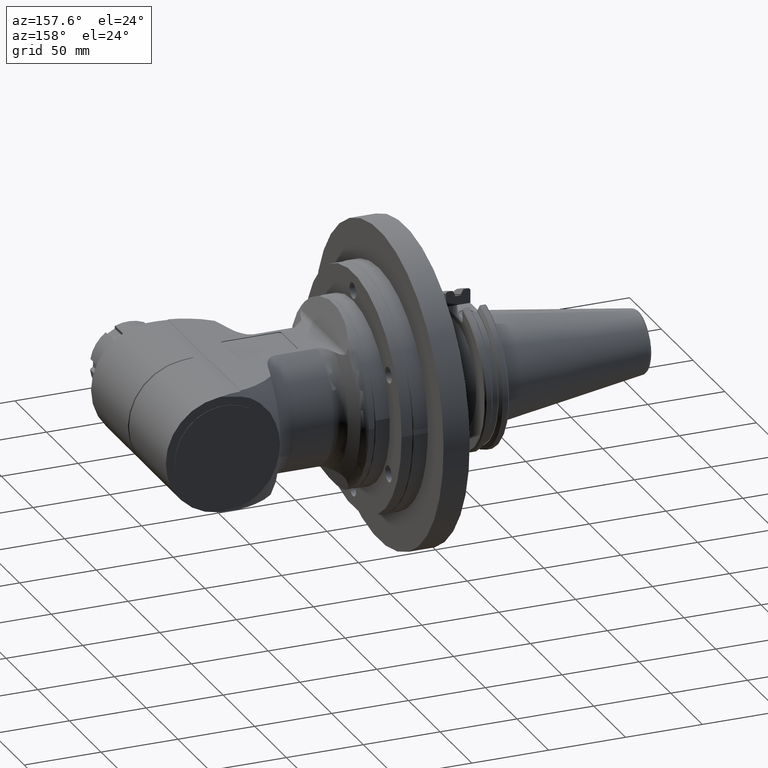
[diagram: clean part render]
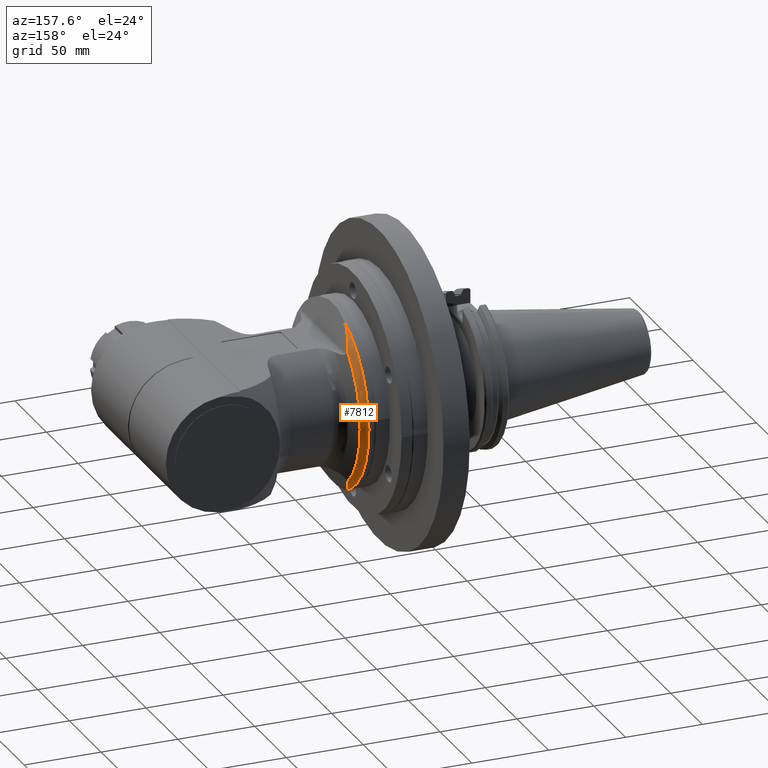
[diagram: same view with one face highlighted and labeled with its STEP entity id]
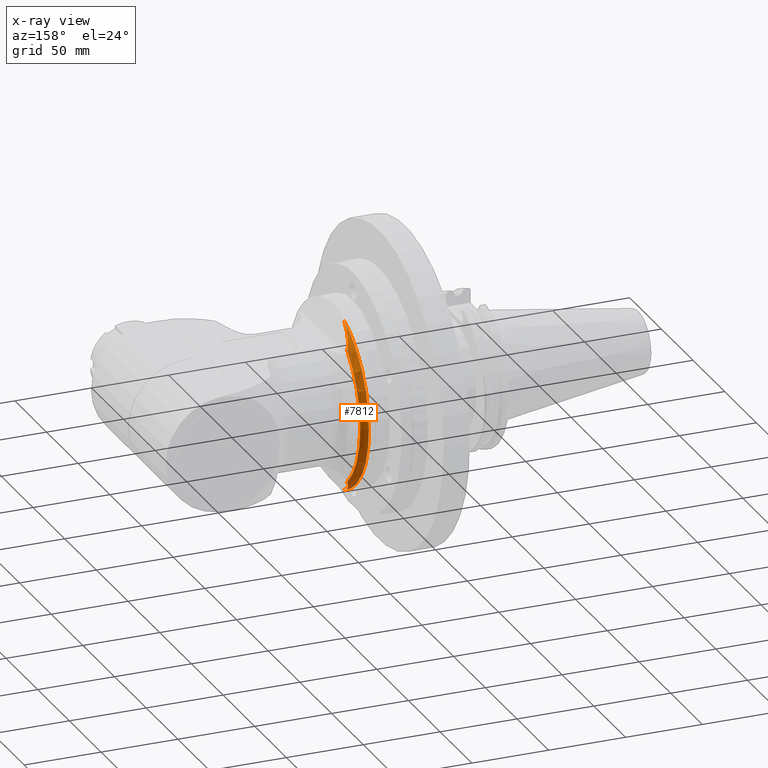
[diagram: x-ray of the same camera — body ghosted, the highlighted face saturated]
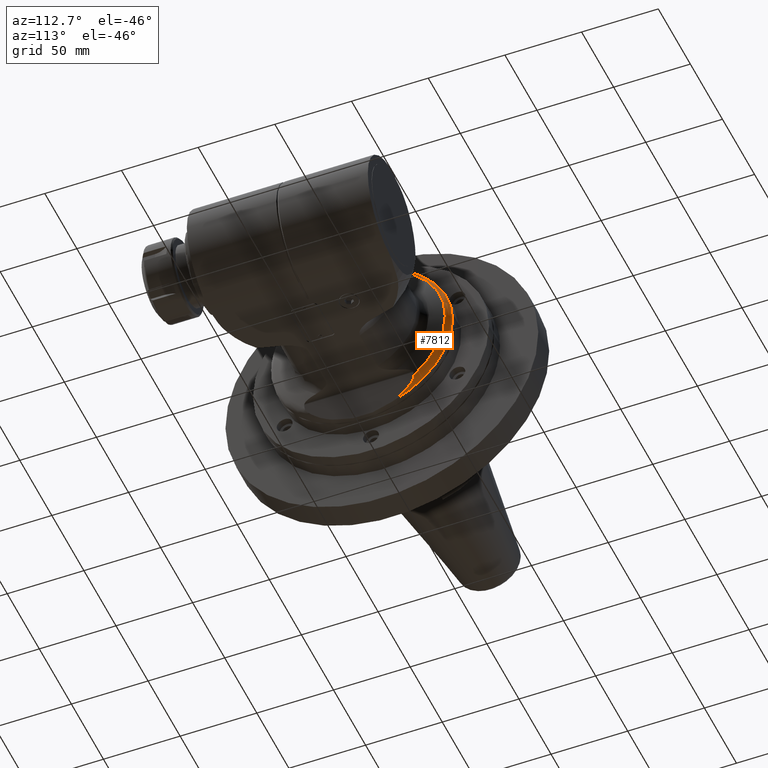
[diagram: same view with one face highlighted and labeled with its STEP entity id]
A machine part, auxiliary view. The second image highlights one B-rep face of the part: STEP entity #7812.
The next image is the same camera in x-ray: the body ghosted, the highlighted face saturated — about 0% of this face is hidden behind the body in this view.
A second angle (auxiliary view) of the same face is appended — the face is thin or edge-on in the first view.
In plain terms, the highlighted toroidal blend (fillet) surface has major radius 54 mm and minor (blend) radius 5 mm.
Its self-contained STEP definition (entity closure, byte-faithful):
#99=TOROIDAL_SURFACE('',#8564,54.,5.);
#118=B_SPLINE_CURVE_WITH_KNOTS('',3,(#11821,#11822,#11823,#11824,#11825,
#11826,#11827,#11828,#11829,#11830,#11831,#11832,#11833,#11834,#11835,#11836,
#11837,#11838),.UNSPECIFIED.,.F.,.F.,(4,2,2,2,2,2,2,2,4),(10.9879278441126,
10.9957160715657,11.1343796732733,11.4346740925179,11.8300800393266,12.2254859861352,
12.5830305777816,12.940575169428,13.0531536640856),.UNSPECIFIED.);
#138=B_SPLINE_CURVE_WITH_KNOTS('',3,(#12880,#12881,#12882,#12883,#12884,
#12885,#12886,#12887,#12888,#12889,#12890,#12891,#12892,#12893,#12894,#12895,
#12896,#12897),.UNSPECIFIED.,.F.,.F.,(4,2,2,2,2,2,2,2,4),(1.83524515230333,
1.94782364696094,2.30536823860732,2.66291283025371,3.05831877706234,3.45372472387097,
3.75401914311565,3.89268274482322,3.9004709722763),.UNSPECIFIED.);
#670=FACE_OUTER_BOUND('',#1101,.T.);
#1101=EDGE_LOOP('',(#6296,#6297,#6298,#6299,#6300));
#1431=CIRCLE('',#8262,56.1130913087);
#1550=CIRCLE('',#8561,59.);
#1551=CIRCLE('',#8562,59.);
#3204=VERTEX_POINT('',#11818);
#3205=VERTEX_POINT('',#11820);
#3207=VERTEX_POINT('',#11843);
#3428=VERTEX_POINT('',#12879);
#3430=VERTEX_POINT('',#12921);
#4135=EDGE_CURVE('',#3205,#3204,#118,.T.);
#4138=EDGE_CURVE('',#3207,#3205,#1431,.T.);
#4494=EDGE_CURVE('',#3428,#3207,#138,.T.);
#4498=EDGE_CURVE('',#3204,#3430,#1550,.T.);
#4499=EDGE_CURVE('',#3430,#3428,#1551,.T.);
#6296=ORIENTED_EDGE('',*,*,#4498,.T.);
#6297=ORIENTED_EDGE('',*,*,#4499,.T.);
#6298=ORIENTED_EDGE('',*,*,#4494,.T.);
#6299=ORIENTED_EDGE('',*,*,#4138,.T.);
#6300=ORIENTED_EDGE('',*,*,#4135,.T.);
#7812=ADVANCED_FACE('',(#670),#99,.T.);
#8262=AXIS2_PLACEMENT_3D('',#11844,#9398,#9399);
#8561=AXIS2_PLACEMENT_3D('',#12922,#10123,#10124);
#8562=AXIS2_PLACEMENT_3D('',#12923,#10125,#10126);
#8564=AXIS2_PLACEMENT_3D('',#12927,#10130,#10131);
#9398=DIRECTION('center_axis',(-1.,0.,0.));
#9399=DIRECTION('ref_axis',(0.,1.,0.));
#10123=DIRECTION('center_axis',(1.,0.,0.));
#10124=DIRECTION('ref_axis',(0.,0.324676078856111,-0.945825271294133));
#10125=DIRECTION('center_axis',(1.,0.,0.));
#10126=DIRECTION('ref_axis',(0.,0.324676078856111,-0.945825271294133));
#10130=DIRECTION('center_axis',(1.,0.,0.));
#10131=DIRECTION('ref_axis',(0.,1.,-1.22464679914735E-16));
#11818=CARTESIAN_POINT('',(-94.18535130404,19.15588865251,-55.80369100635));
#11820=CARTESIAN_POINT('',(-89.65381236885,35.62530817393,-43.35339010656));
#11821=CARTESIAN_POINT('Ctrl Pts',(-89.6538123688561,35.6253081739284,-43.3533901065578));
#11822=CARTESIAN_POINT('Ctrl Pts',(-89.6630613036171,35.6256255432891,-43.3788013459676));
#11823=CARTESIAN_POINT('Ctrl Pts',(-89.6721579632719,35.6253904288883,-43.4037942129615));
#11824=CARTESIAN_POINT('Ctrl Pts',(-89.8390646739695,35.612501129992,-43.8623666317586));
#11825=CARTESIAN_POINT('Ctrl Pts',(-90.0193808462594,35.4401876032091,-44.3577812434876));
#11826=CARTESIAN_POINT('Ctrl Pts',(-90.4766255187694,34.845503311506,-45.6140506563745));
#11827=CARTESIAN_POINT('Ctrl Pts',(-90.809513546956,34.1415743869398,-46.5286529970238));
#11828=CARTESIAN_POINT('Ctrl Pts',(-91.4125297036187,32.6351745420917,-48.1854262710209));
#11829=CARTESIAN_POINT('Ctrl Pts',(-91.7519106450878,31.5875671436029,-49.1178677443004));
#11830=CARTESIAN_POINT('Ctrl Pts',(-92.3729833676757,29.3483701580548,-50.8242510254495));
#11831=CARTESIAN_POINT('Ctrl Pts',(-92.6546044810595,28.1566130198203,-51.5979986753131));
#11832=CARTESIAN_POINT('Ctrl Pts',(-93.1061641062281,26.0220980476314,-52.8386485490012));
#11833=CARTESIAN_POINT('Ctrl Pts',(-93.3237567791525,24.8771513669047,-53.4364795044997));
#11834=CARTESIAN_POINT('Ctrl Pts',(-93.7199262909705,22.5303004937326,-54.5249462924958));
#11835=CARTESIAN_POINT('Ctrl Pts',(-93.8987102764363,21.3286952801852,-55.0161512555231));
#11836=CARTESIAN_POINT('Ctrl Pts',(-94.0944937449247,19.8699111503401,-55.5540619142976));
#11837=CARTESIAN_POINT('Ctrl Pts',(-94.1404454982611,19.5153045203164,-55.6803133189738));
#11838=CARTESIAN_POINT('Ctrl Pts',(-94.18535130404,19.1558886525113,-55.8036910063536));
#11843=CARTESIAN_POINT('',(-89.65381236885,35.62530817393,43.35339010656));
#11844=CARTESIAN_POINT('Origin',(-89.65381236885,0.,0.));
#12879=CARTESIAN_POINT('',(-94.18535130404,19.15588865251,55.80369100635));
#12880=CARTESIAN_POINT('Ctrl Pts',(-94.18535130404,19.1558886525112,55.8036910063536));
#12881=CARTESIAN_POINT('Ctrl Pts',(-94.1404454982611,19.5153045203164,55.6803133189738));
#12882=CARTESIAN_POINT('Ctrl Pts',(-94.0944937449247,19.8699111503401,55.5540619142976));
#12883=CARTESIAN_POINT('Ctrl Pts',(-93.8987102764363,21.3286952801852,55.0161512555231));
#12884=CARTESIAN_POINT('Ctrl Pts',(-93.7199262909705,22.5303004937326,54.5249462924958));
#12885=CARTESIAN_POINT('Ctrl Pts',(-93.3237567791525,24.8771513669047,53.4364795044997));
#12886=CARTESIAN_POINT('Ctrl Pts',(-93.1061641062281,26.0220980476314,52.8386485490012));
#12887=CARTESIAN_POINT('Ctrl Pts',(-92.6546044810595,28.1566130198203,51.5979986753131));
#12888=CARTESIAN_POINT('Ctrl Pts',(-92.3729833676757,29.3483701580549,50.8242510254495));
#12889=CARTESIAN_POINT('Ctrl Pts',(-91.7519106450878,31.5875671436029,49.1178677443004));
#12890=CARTESIAN_POINT('Ctrl Pts',(-91.4125297036187,32.6351745420917,48.1854262710209));
#12891=CARTESIAN_POINT('Ctrl Pts',(-90.809513546956,34.1415743869398,46.5286529970238));
#12892=CARTESIAN_POINT('Ctrl Pts',(-90.4766255187694,34.845503311506,45.6140506563745));
#12893=CARTESIAN_POINT('Ctrl Pts',(-90.0193808462594,35.4401876032091,44.3577812434876));
#12894=CARTESIAN_POINT('Ctrl Pts',(-89.8390646739695,35.612501129992,43.8623666317586));
#12895=CARTESIAN_POINT('Ctrl Pts',(-89.6721579632719,35.6253904288883,43.4037942129615));
#12896=CARTESIAN_POINT('Ctrl Pts',(-89.6630613036171,35.6256255432891,43.3788013459676));
#12897=CARTESIAN_POINT('Ctrl Pts',(-89.6538123688562,35.6253081739284,43.3533901065578));
#12921=CARTESIAN_POINT('',(-94.18535130404,59.,7.22541611496938E-15));
#12922=CARTESIAN_POINT('Origin',(-94.18535130404,0.,0.));
#12923=CARTESIAN_POINT('Origin',(-94.18535130404,0.,0.));
#12927=CARTESIAN_POINT('Origin',(-94.18535130404,0.,0.));